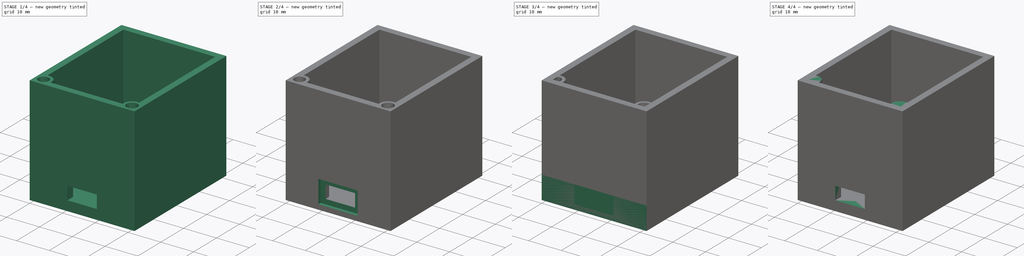
[diagram: build sequence overview — one tinted view per stage of 4, left to right]
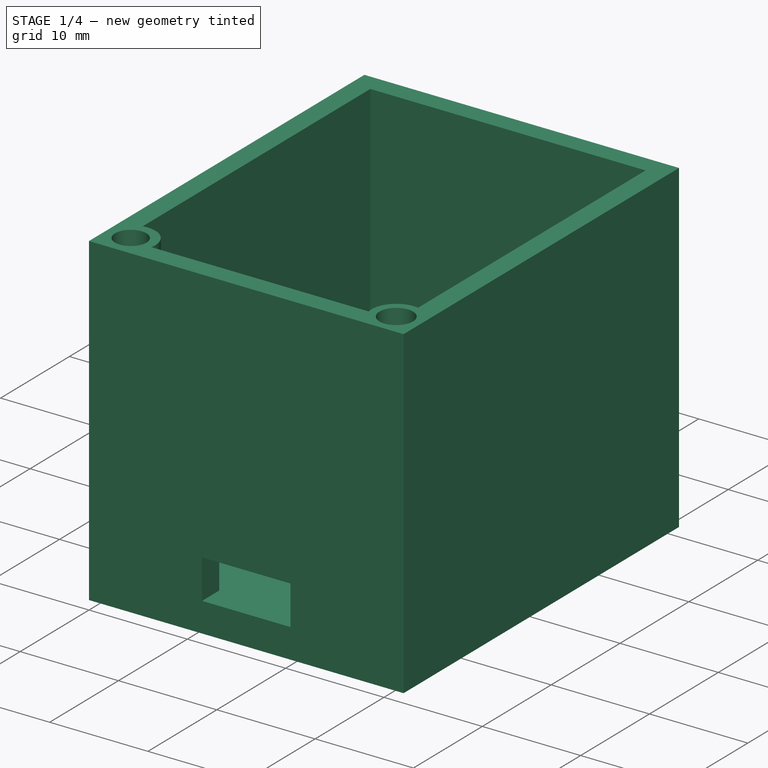
[diagram: stage 1 of 4 — iso view after this stage's code; geometry added in this stage tinted green]
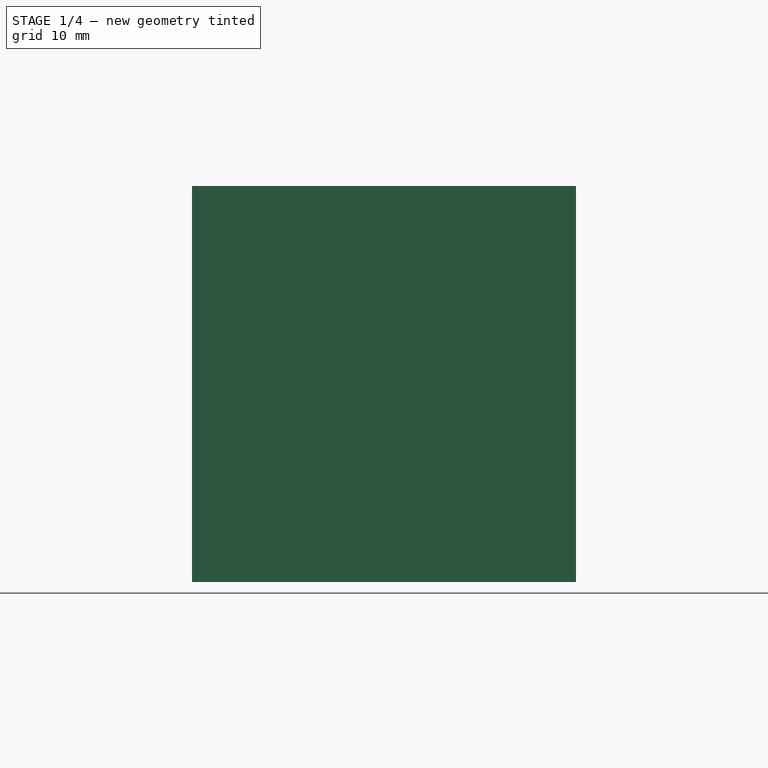
[diagram: stage 1 of 4 — front view after this stage's code; geometry added in this stage tinted green]
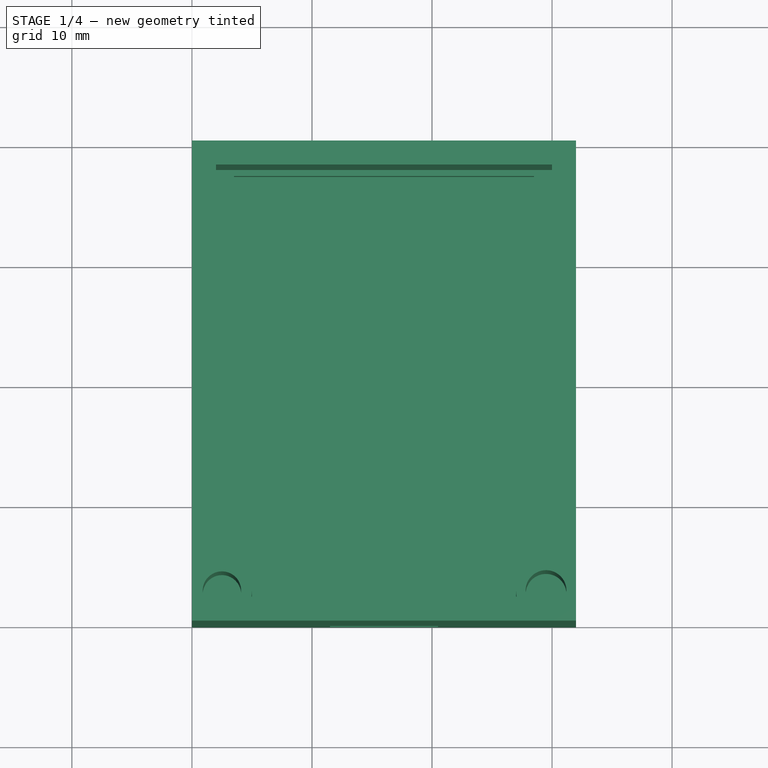
[diagram: stage 1 of 4 — top view after this stage's code; geometry added in this stage tinted green]
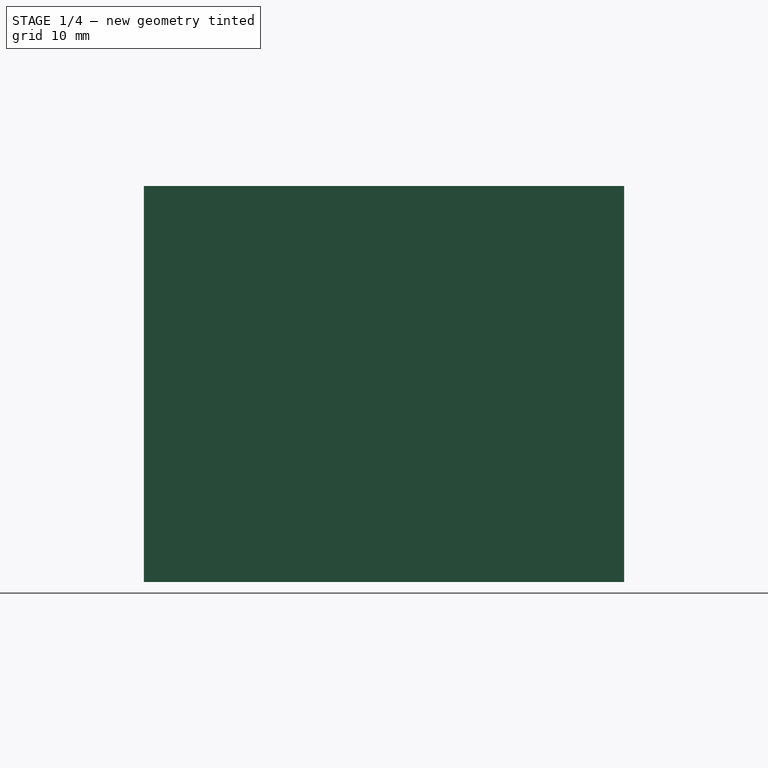
[diagram: stage 1 of 4 — right view after this stage's code; geometry added in this stage tinted green]
FCSTD DOCUMENT  (FreeCAD 0.16R6712 (Git))
Label: chasis_mini_modulo
License: All rights reserved
LicenseURL: http://en.wikipedia.org/wiki/All_rights_reserved
objects: Sketcher::SketchObject×7, PartDesign::Pocket×4, PartDesign::Pad×3, PartDesign::Chamfer×2, Part::Feature×1
note: 24 computed .brp shape members not serialized (recipe doc carries the construction recipe); baked Part::Feature solids carry a one-line shape summary decoded from their .brp

FEATURE [Part::Feature] Pad002001  label="Pad003"
  shape: bbox 32 x 40 x 33 mm, 24 faces (baked)
FEATURE [Sketcher::SketchObject] Sketch005
  ExternalGeometry = -> [Pad002001]
  Placement = pos=(0,0,33) rot=(0,0,1;0rad)
  Support = -> Pad002001 [Face22]
  sketch-geometry (2):
    g0: Circle CenterX=2.5 CenterY=2.5 CenterZ=0 NormalX=0 NormalY=0 NormalZ=1 Radius=1.6
    g1: Circle CenterX=29.5 CenterY=2.5 CenterZ=0 NormalX=0 NormalY=0 NormalZ=1 Radius=1.7
  constraints (4):
    c: Coincident(g0,g-3)
    c: Radius(g0) = 1.6
    c: Coincident(g1,g-4)
    c: Radius(g1) = 1.7
FEATURE [PartDesign::Pocket] Pocket002
  Length = 18
  Sketch = -> Sketch005
  Type = 0
FEATURE [PartDesign::Chamfer] Chamfer
  Base = -> Pocket002 [Edge48]
  Size = 2.9
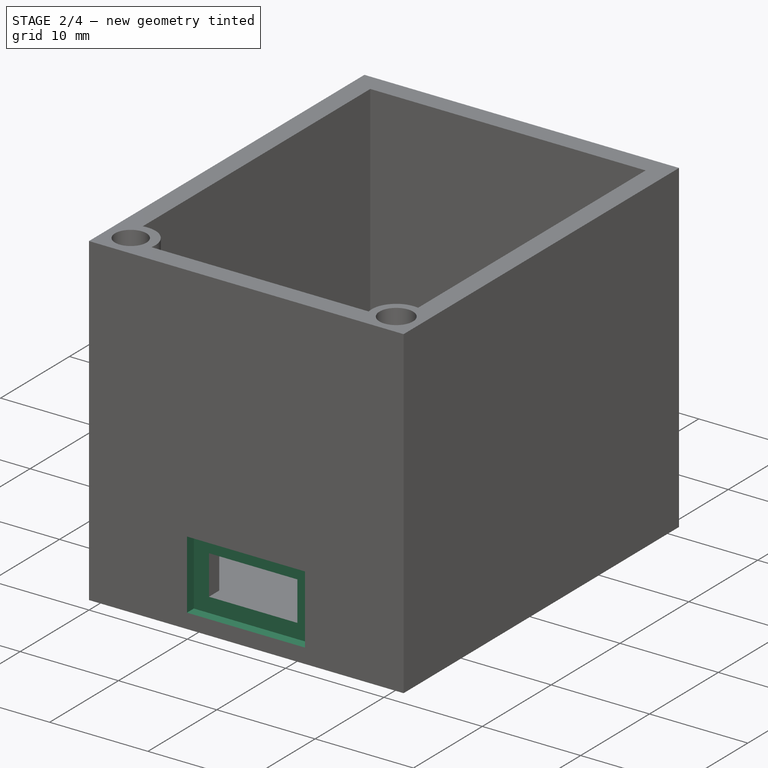
[diagram: stage 2 of 4 — iso view after this stage's code; geometry added in this stage tinted green]
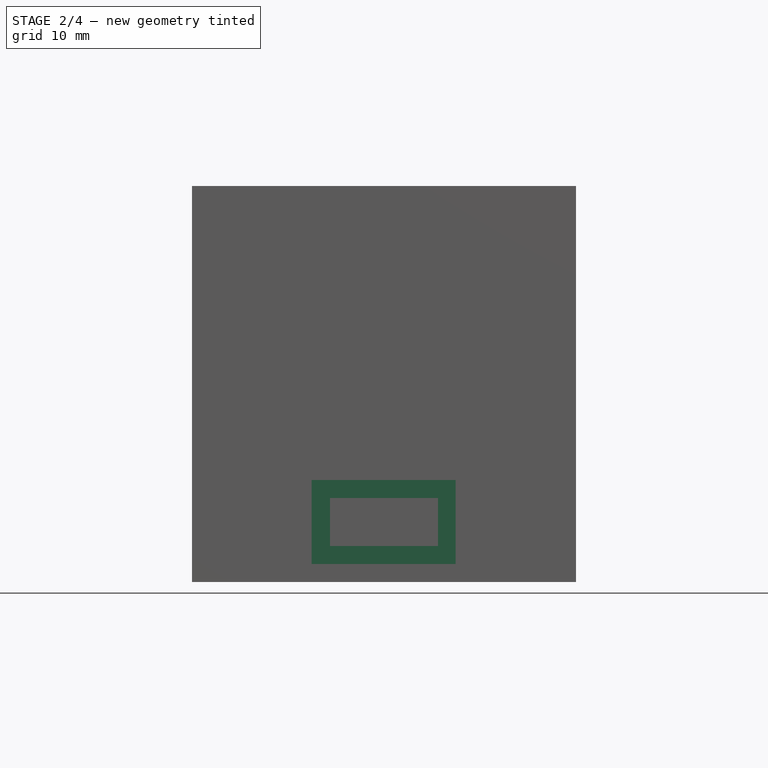
[diagram: stage 2 of 4 — front view after this stage's code; geometry added in this stage tinted green]
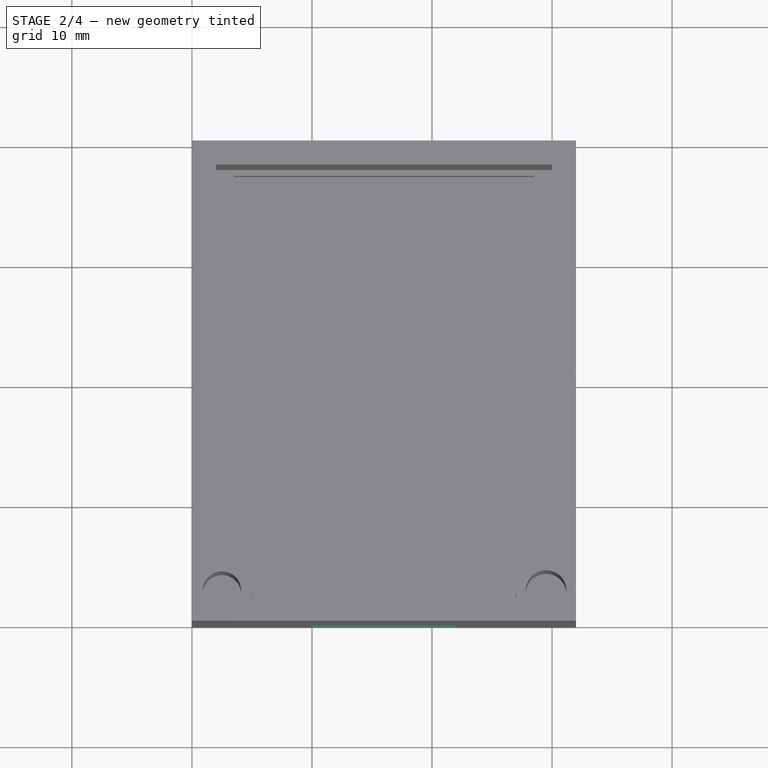
[diagram: stage 2 of 4 — top view after this stage's code; geometry added in this stage tinted green]
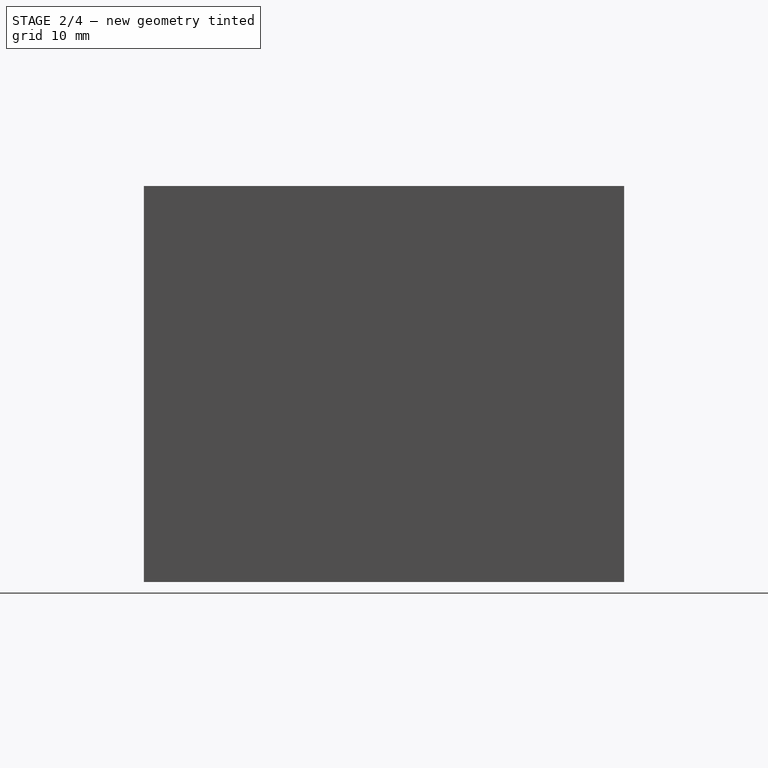
[diagram: stage 2 of 4 — right view after this stage's code; geometry added in this stage tinted green]
FEATURE [PartDesign::Chamfer] Chamfer001
  Base = -> Chamfer [Edge52]
  Size = 2.9
FEATURE [Sketcher::SketchObject] Sketch006
  Placement = pos=(0,0,0) rot=(1,0,0;1.5708rad)
  Support = -> Chamfer001 [Face17]
  sketch-geometry (4):
    g0: LineSegment StartX=9.96623 StartY=8.50614 StartZ=0 EndX=21.9662 EndY=8.50614 EndZ=0
    g1: LineSegment StartX=21.9662 StartY=8.50614 StartZ=0 EndX=21.9662 EndY=1.50614 EndZ=0
    g2: LineSegment StartX=21.9662 StartY=1.50614 StartZ=0 EndX=9.96623 EndY=1.50614 EndZ=0
    g3: LineSegment StartX=9.96623 StartY=1.50614 StartZ=0 EndX=9.96623 EndY=8.50614 EndZ=0
  constraints (10):
    c: Coincident(g0,g1)
    c: Coincident(g1,g2)
    c: Coincident(g2,g3)
    c: Coincident(g3,g0)
    c: Horizontal(g0)
    c: Horizontal(g2)
    c: Vertical(g1)
    c: Vertical(g3)
    c: DistanceX(g0,g0) = 12
    c: DistanceY(g1,g1) = 7
FEATURE [PartDesign::Pocket] Pocket003
  Length = 1
  Sketch = -> Sketch006
  Type = 0
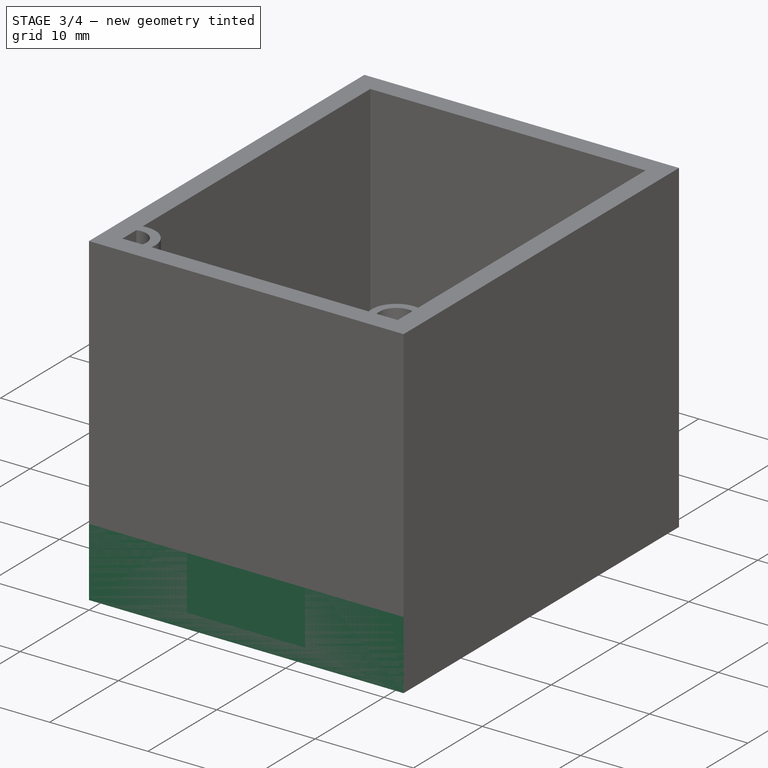
[diagram: stage 3 of 4 — iso view after this stage's code; geometry added in this stage tinted green]
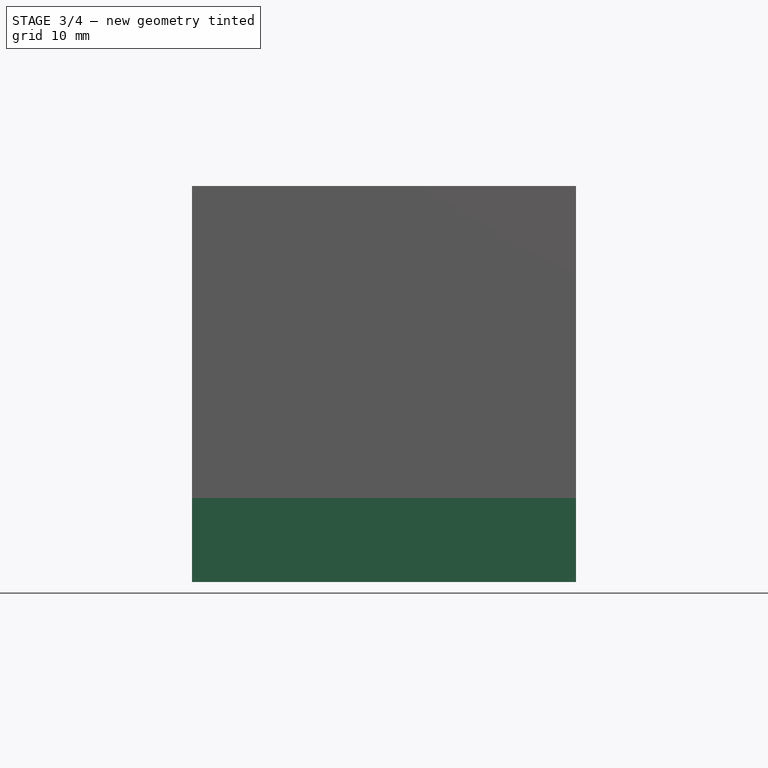
[diagram: stage 3 of 4 — front view after this stage's code; geometry added in this stage tinted green]
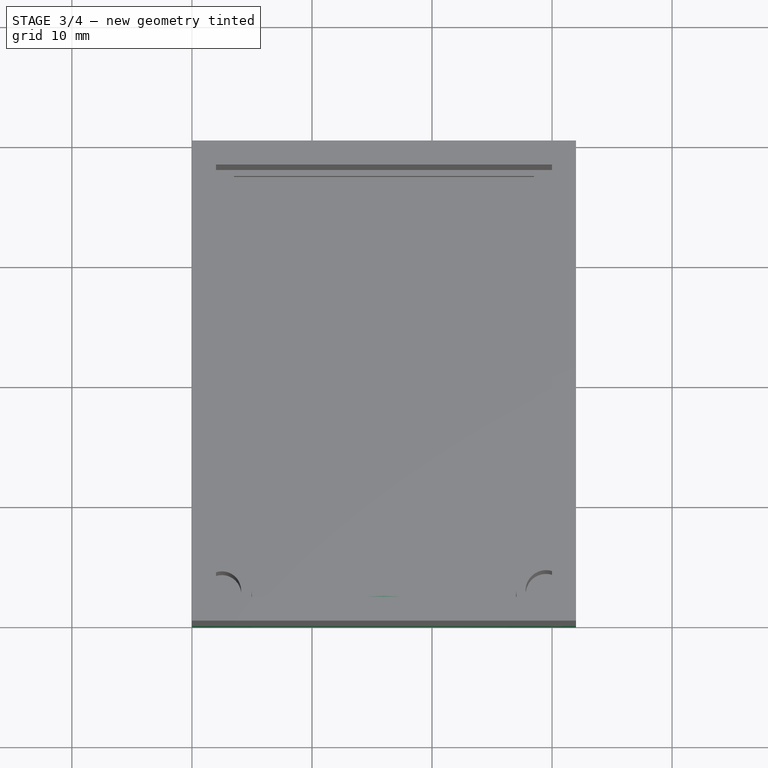
[diagram: stage 3 of 4 — top view after this stage's code; geometry added in this stage tinted green]
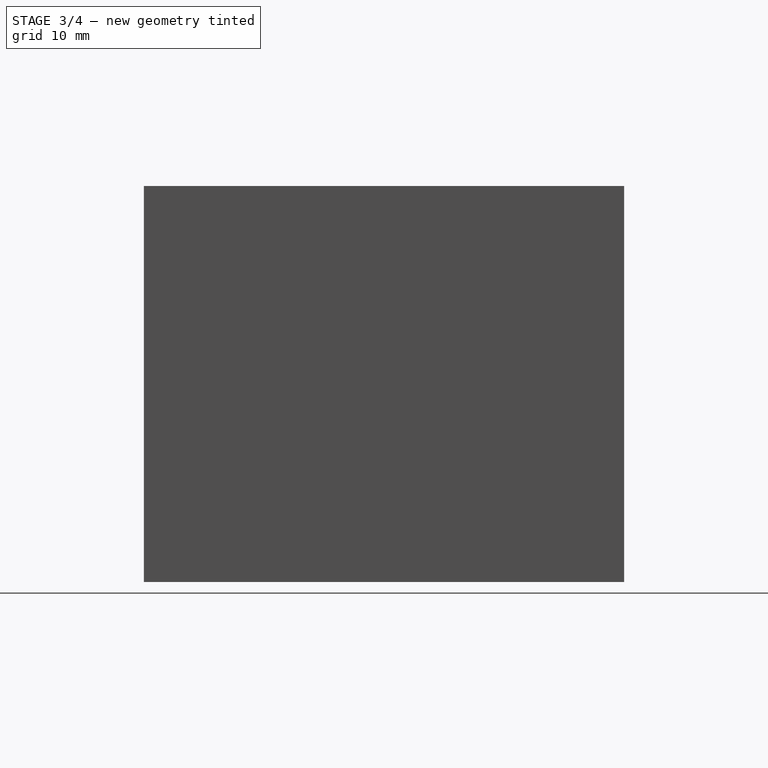
[diagram: stage 3 of 4 — right view after this stage's code; geometry added in this stage tinted green]
FEATURE [Sketcher::SketchObject] Sketch
  sketch-geometry (4):
    g0: LineSegment StartX=0 StartY=40 StartZ=0 EndX=32 EndY=40 EndZ=0
    g1: LineSegment StartX=32 StartY=40 StartZ=0 EndX=32 EndY=0 EndZ=0
    g2: LineSegment StartX=32 StartY=0 StartZ=0 EndX=0 EndY=0 EndZ=0
    g3: LineSegment StartX=0 StartY=0 StartZ=0 EndX=0 EndY=40 EndZ=0
  constraints (11):
    c: Coincident(g0,g1)
    c: Coincident(g1,g2)
    c: Coincident(g2,g3)
    c: Coincident(g3,g0)
    c: Horizontal(g0)
    c: Horizontal(g2)
    c: Vertical(g1)
    c: Vertical(g3)
    c: DistanceX(g0,g0) = 32
    c: DistanceY(g1,g1) = 40
    c: Coincident(g2,g-1)
FEATURE [PartDesign::Pad] Pad
  Length = 7
  Length2 = 100
  Sketch = -> Sketch
  Type = 0
FEATURE [Sketcher::SketchObject] Sketch001
  ExternalGeometry = -> [Pad]
  Placement = pos=(0,0,7) rot=(0,0,1;0rad)
  Support = -> Pad [Face6]
  sketch-geometry (8):
    g0: LineSegment StartX=0 StartY=40 StartZ=0 EndX=32 EndY=40 EndZ=0
    g1: LineSegment StartX=32 StartY=40 StartZ=0 EndX=32 EndY=0 EndZ=0
    g2: LineSegment StartX=32 StartY=0 StartZ=0 EndX=0 EndY=0 EndZ=0
    g3: LineSegment StartX=0 StartY=0 StartZ=0 EndX=0 EndY=40 EndZ=0
    g4: LineSegment StartX=2 StartY=38 StartZ=0 EndX=30 EndY=38 EndZ=0
    g5: LineSegment StartX=30 StartY=38 StartZ=0 EndX=30 EndY=2 EndZ=0
    g6: LineSegment StartX=30 StartY=2 StartZ=0 EndX=2 EndY=2 EndZ=0
    g7: LineSegment StartX=2 StartY=2 StartZ=0 EndX=2 EndY=38 EndZ=0
  constraints (23):
    c: Coincident(g0,g1)
    c: Coincident(g1,g2)
    c: Coincident(g2,g3)
    c: Coincident(g3,g0)
    c: Horizontal(g0)
    c: Horizontal(g2)
    c: Vertical(g1)
    c: Vertical(g3)
    c: Coincident(g0,g-3)
    c: Coincident(g0,g-4)
    c: Coincident(g1,g-4)
    c: Coincident(g4,g5)
    c: Coincident(g5,g6)
    c: Coincident(g6,g7)
    c: Coincident(g7,g4)
    c: Horizontal(g4)
    c: Horizontal(g6)
    c: Vertical(g5)
    c: Vertical(g7)
    c: Distance(g6,g3) = 2
    c: Distance(g5,g2) = 2
    c: Distance(g4,g-4) = 2
    c: Distance(g4,g-3) = 2
FEATURE [PartDesign::Pad] Pad001
  Length = 26
  Length2 = 100
  Sketch = -> Sketch001
  Type = 0
FEATURE [Sketcher::SketchObject] Sketch002
  ExternalGeometry = -> [Pad001]
  Placement = pos=(0,0,7) rot=(0,0,1;0rad)
  Support = -> Pad001 [Face15]
  sketch-geometry (5):
    g0: LineSegment StartX=3.5 StartY=37.5 StartZ=0 EndX=28.5 EndY=37.5 EndZ=0
    g1: LineSegment StartX=28.5 StartY=37.5 StartZ=0 EndX=28.5 EndY=2.5 EndZ=0
    g2: LineSegment StartX=3.5 StartY=2.5 StartZ=0 EndX=3.5 EndY=37.5 EndZ=0
    g3: LineSegment StartX=3.5 StartY=2.5 StartZ=0 EndX=16 EndY=2.5 EndZ=0
    g4: LineSegment StartX=16 StartY=2.5 StartZ=0 EndX=28.5 EndY=2.5 EndZ=0
  constraints (15):
    c: Coincident(g0,g1)
    c: Coincident(g2,g0)
    c: Horizontal(g0)
    c: Vertical(g1)
    c: Vertical(g2)
    c: Horizontal(g3)
    c: Horizontal(g4)
    c: Coincident(g4,g1)
    c: Coincident(g3,g2)
    c: DistanceX(g0,g0) = 25
    c: Equal(g3,g4)
    c: DistanceY(g1,g1) = 35
    c: Coincident(g4,g3)
    c: Distance(g0,g-4) = 1.5
    c: Distance(g1,g-5) = 0.5
FEATURE [PartDesign::Pocket] Pocket
  Length = 5
  Sketch = -> Sketch002
  Type = 0
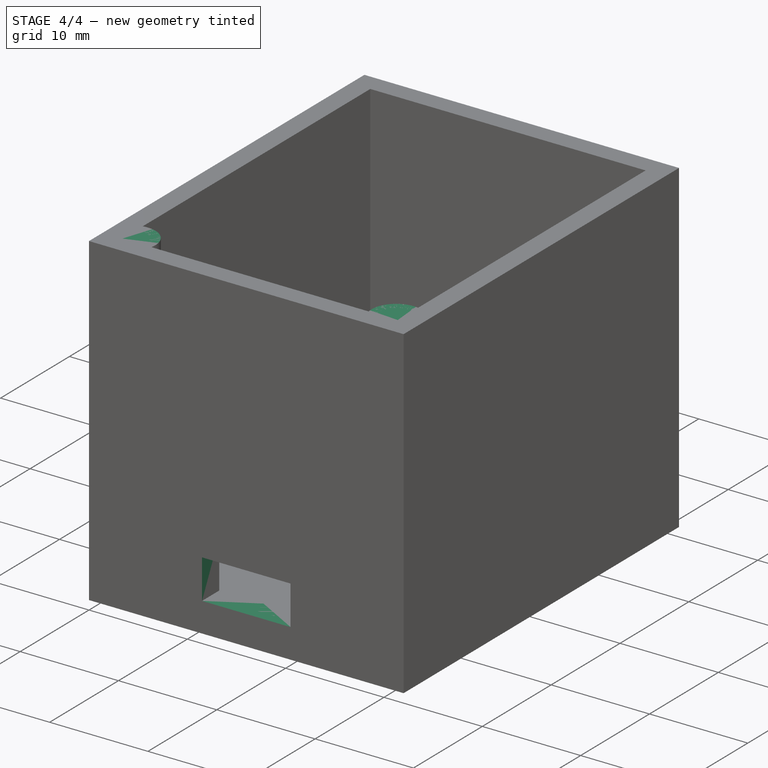
[diagram: stage 4 of 4 — iso view after this stage's code; geometry added in this stage tinted green]
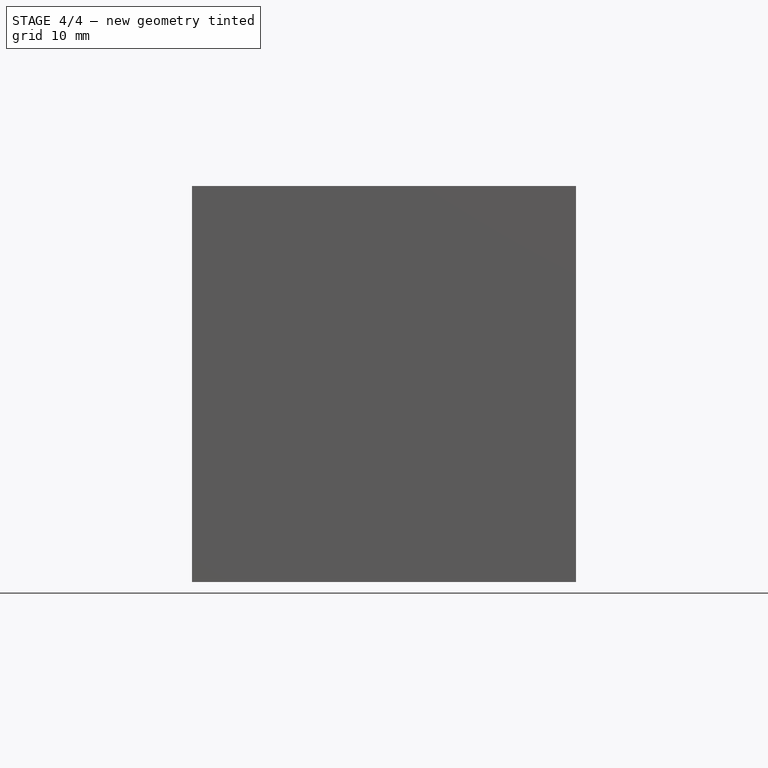
[diagram: stage 4 of 4 — front view after this stage's code; geometry added in this stage tinted green]
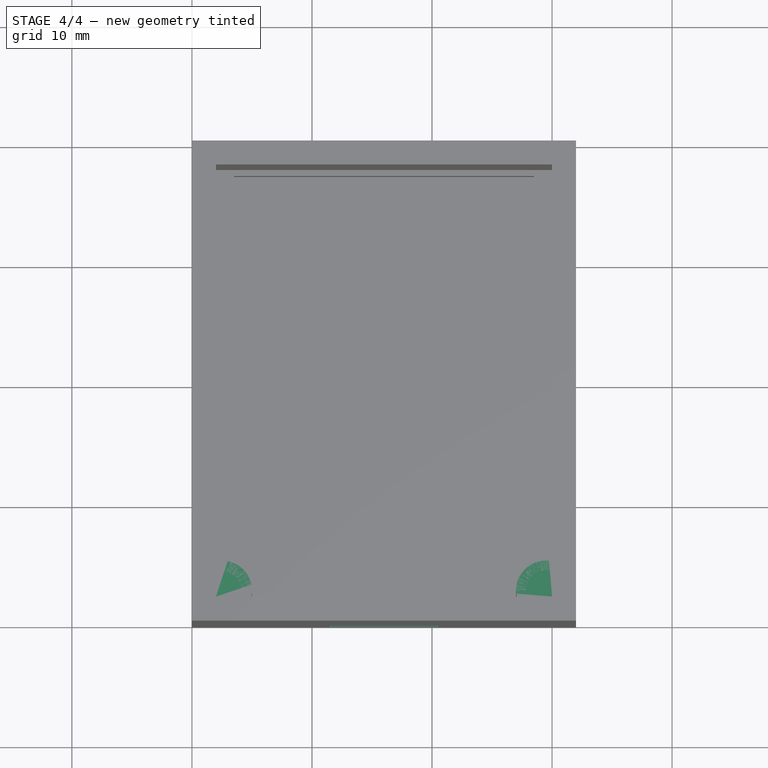
[diagram: stage 4 of 4 — top view after this stage's code; geometry added in this stage tinted green]
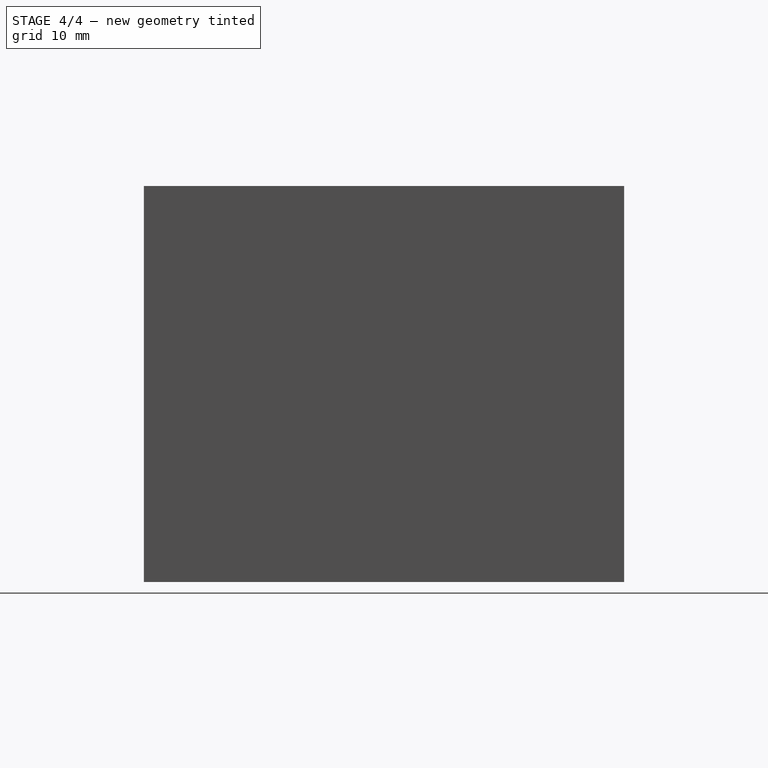
[diagram: stage 4 of 4 — right view after this stage's code; geometry added in this stage tinted green]
FEATURE [Sketcher::SketchObject] Sketch003
  ExternalGeometry = -> [Pocket]
  Placement = pos=(0,0,0) rot=(1,0,0;1.5708rad)
  Support = -> Pocket [Face4]
  sketch-geometry (6):
    g0: LineSegment StartX=11.5 StartY=7 StartZ=0 EndX=20.5 EndY=7 EndZ=0
    g1: LineSegment StartX=20.5 StartY=7 StartZ=0 EndX=20.5 EndY=3 EndZ=0
    g2: LineSegment StartX=20.5 StartY=3 StartZ=0 EndX=11.5 EndY=3 EndZ=0
    g3: LineSegment StartX=11.5 StartY=3 StartZ=0 EndX=11.5 EndY=7 EndZ=0
    g4: LineSegment [constr] StartX=0 StartY=7 StartZ=0 EndX=11.5 EndY=7 EndZ=0
    g5: LineSegment [constr] StartX=20.5 StartY=7 StartZ=0 EndX=32 EndY=7 EndZ=0
  constraints (18):
    c: Coincident(g0,g1)
    c: Coincident(g1,g2)
    c: Coincident(g2,g3)
    c: Coincident(g3,g0)
    c: Horizontal(g0)
    c: Horizontal(g2)
    c: Vertical(g1)
    c: Vertical(g3)
    c: DistanceX(g2,g2) = 9
    c: DistanceY(g3,g3) = 4
    c: PointOnObject(g0,g-3)
    c: Horizontal(g4)
    c: Horizontal(g5)
    c: Equal(g5,g4)
    c: Coincident(g5,g-3)
    c: Coincident(g4,g-3)
    c: Coincident(g4,g0)
    c: Coincident(g5,g0)
FEATURE [PartDesign::Pocket] Pocket001
  Length = 5
  Sketch = -> Sketch003
  Type = 0
FEATURE [Sketcher::SketchObject] Sketch004
  ExternalGeometry = -> [Pocket001]
  Placement = pos=(0,0,33) rot=(0,0,1;0rad)
  Support = -> Pocket001 [Face13]
  sketch-geometry (2):
    g0: Circle CenterX=2.5 CenterY=2.5 CenterZ=0 NormalX=0 NormalY=0 NormalZ=1 Radius=2.5
    g1: Circle CenterX=29.5 CenterY=2.5 CenterZ=0 NormalX=0 NormalY=0 NormalZ=1 Radius=2.5
  constraints (6):
    c: Equal(g0,g1)
    c: Radius(g0) = 2.5
    c: Tangent(g0,g-2)
    c: Tangent(g0,g-1)
    c: Tangent(g1,g-3)
    c: Tangent(g1,g-1)
FEATURE [PartDesign::Pad] Pad002
  Length = 20
  Length2 = 100
  Reversed = true
  Sketch = -> Sketch004
  Type = 0
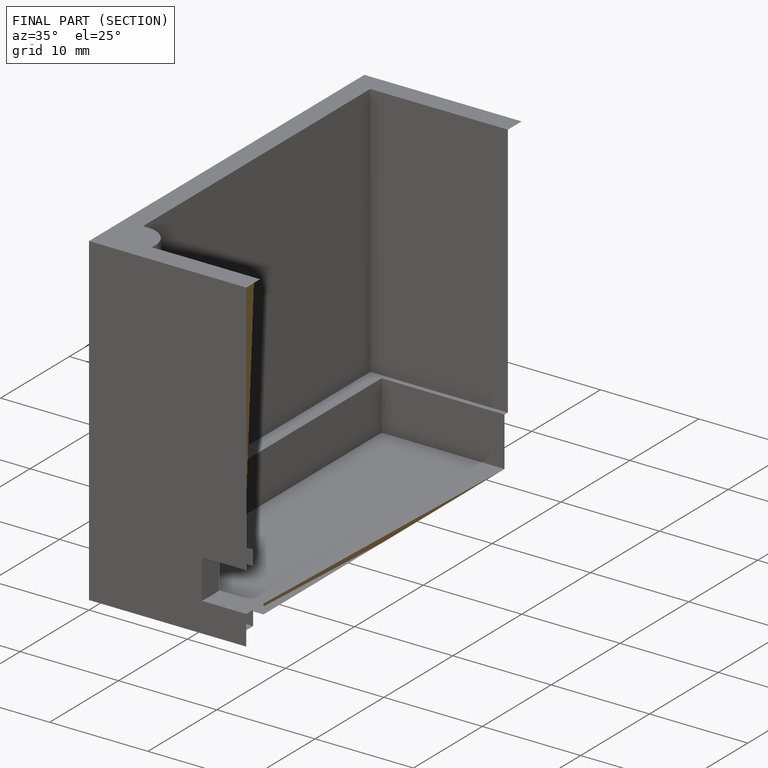
[diagram: finished part — half-section view (interior)]
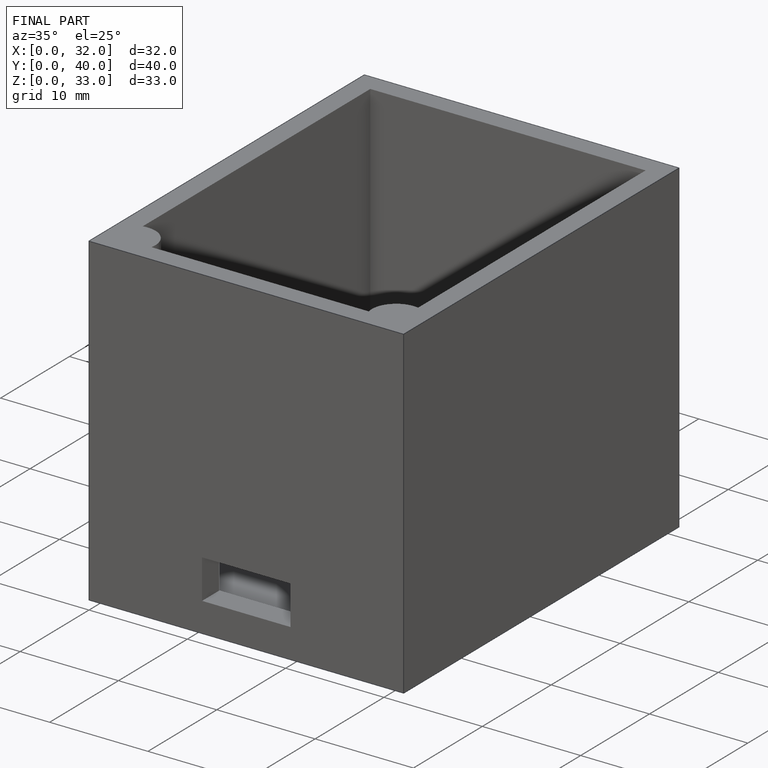
[diagram: finished part — iso view with bounding-box wireframe]
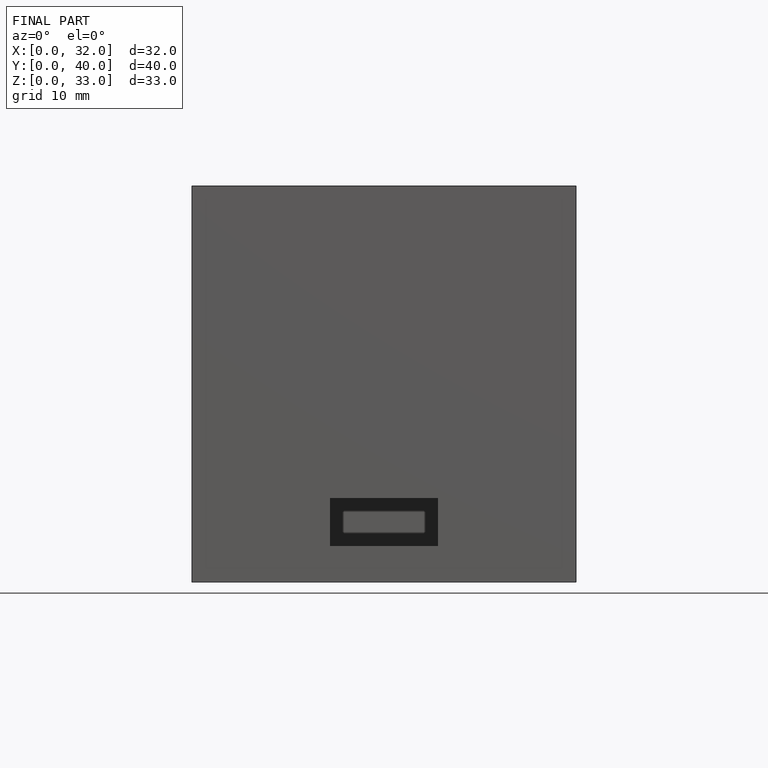
[diagram: finished part — front view with bounding-box wireframe]
